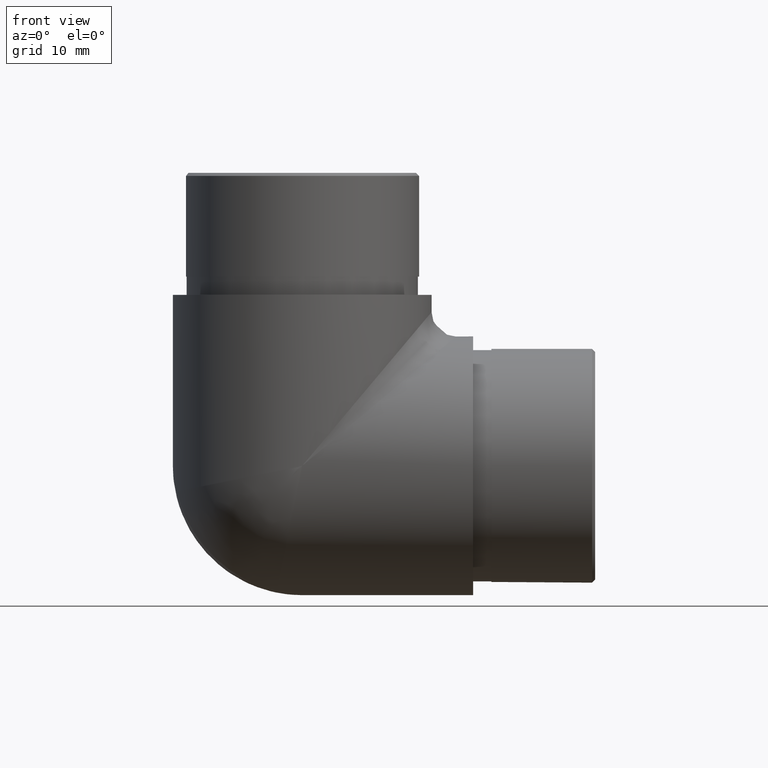
[diagram: clean part render]
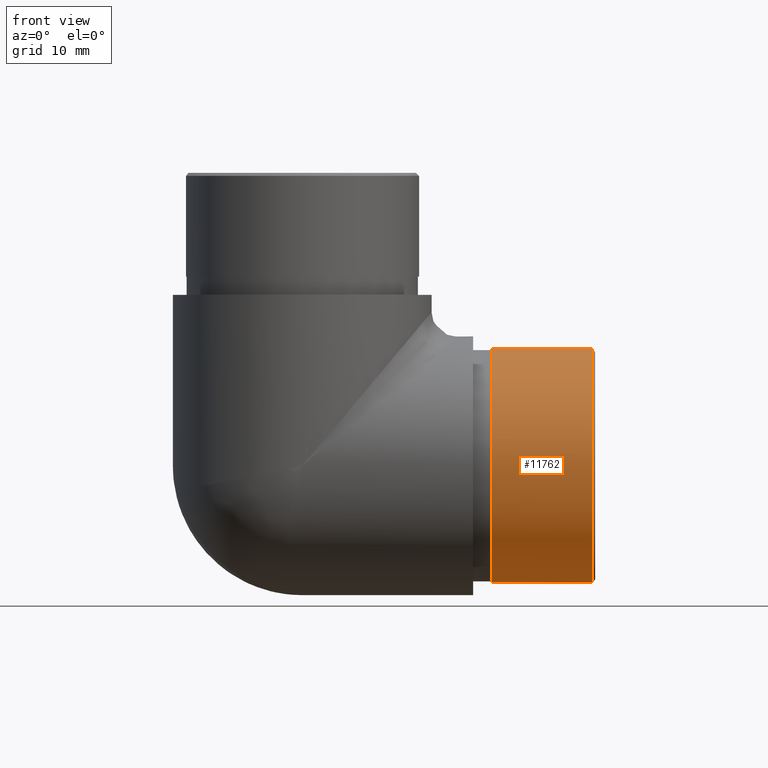
[diagram: same view with one face highlighted and labeled with its STEP entity id]
A machine part, front view. The second image highlights one B-rep face of the part: STEP entity #11762.
In plain terms, the highlighted cylindrical surface (bore or boss wall) has radius 19.15 mm, axis along (-1, -0, 0).
Its self-contained STEP definition (entity closure, byte-faithful):
#672 = DIRECTION ( 'NONE',  ( -1.000000000000000000, -0.0000000000000000000, 4.440892098500625200E-016 ) ) ;
#954 = CIRCLE ( 'NONE', #12613, 19.15000000000000200 ) ;
#1293 = EDGE_CURVE ( 'NONE', #4113, #4113, #9268, .T. ) ;
#1953 = EDGE_LOOP ( 'NONE', ( #9680 ) ) ;
#1993 = EDGE_CURVE ( 'NONE', #2851, #2851, #954, .T. ) ;
#2067 = FACE_OUTER_BOUND ( 'NONE', #9168, .T. ) ;
#2700 = CARTESIAN_POINT ( 'NONE',  ( 31.00000000000000000, 21.19999999999999900, 21.19999999999997800 ) ) ;
#2851 = VERTEX_POINT ( 'NONE', #11925 ) ;
#2892 = CARTESIAN_POINT ( 'NONE',  ( 31.00000000000000400, 21.19999999999999900, 40.34999999999998000 ) ) ;
#3722 = CARTESIAN_POINT ( 'NONE',  ( 48.00000000000000000, 21.19999999999999900, 21.19999999999997100 ) ) ;
#4110 = FACE_OUTER_BOUND ( 'NONE', #1953, .T. ) ;
#4113 = VERTEX_POINT ( 'NONE', #2892 ) ;
#4599 = DIRECTION ( 'NONE',  ( -1.000000000000000000, -0.0000000000000000000, -0.0000000000000000000 ) ) ;
#5221 = CYLINDRICAL_SURFACE ( 'NONE', #10353, 19.15000000000000200 ) ;
#6646 = DIRECTION ( 'NONE',  ( -1.000000000000000000, -0.0000000000000000000, 4.440892098500625200E-016 ) ) ;
#7931 = ORIENTED_EDGE ( 'NONE', *, *, #1993, .T. ) ;
#8363 = AXIS2_PLACEMENT_3D ( 'NONE', #2700, #6646, #8651 ) ;
#8651 = DIRECTION ( 'NONE',  ( 1.811721645928780100E-016, 0.0000000000000000000, 1.000000000000000000 ) ) ;
#9168 = EDGE_LOOP ( 'NONE', ( #7931 ) ) ;
#9268 = CIRCLE ( 'NONE', #8363, 19.15000000000000200 ) ;
#9401 = DIRECTION ( 'NONE',  ( 0.0000000000000000000, 0.0000000000000000000, -1.000000000000000000 ) ) ;
#9522 = CARTESIAN_POINT ( 'NONE',  ( 47.49999999999999300, 21.19999999999999900, 21.19999999999997100 ) ) ;
#9680 = ORIENTED_EDGE ( 'NONE', *, *, #1293, .F. ) ;
#10353 = AXIS2_PLACEMENT_3D ( 'NONE', #3722, #672, #11700 ) ;
#11700 = DIRECTION ( 'NONE',  ( 3.623443291857560100E-016, 0.0000000000000000000, 1.000000000000000000 ) ) ;
#11762 = ADVANCED_FACE ( 'NONE', ( #2067, #4110 ), #5221, .T. ) ;
#11925 = CARTESIAN_POINT ( 'NONE',  ( 47.49999999999999300, 21.19999999999999900, 2.049999999999968700 ) ) ;
#12613 = AXIS2_PLACEMENT_3D ( 'NONE', #9522, #4599, #9401 ) ;